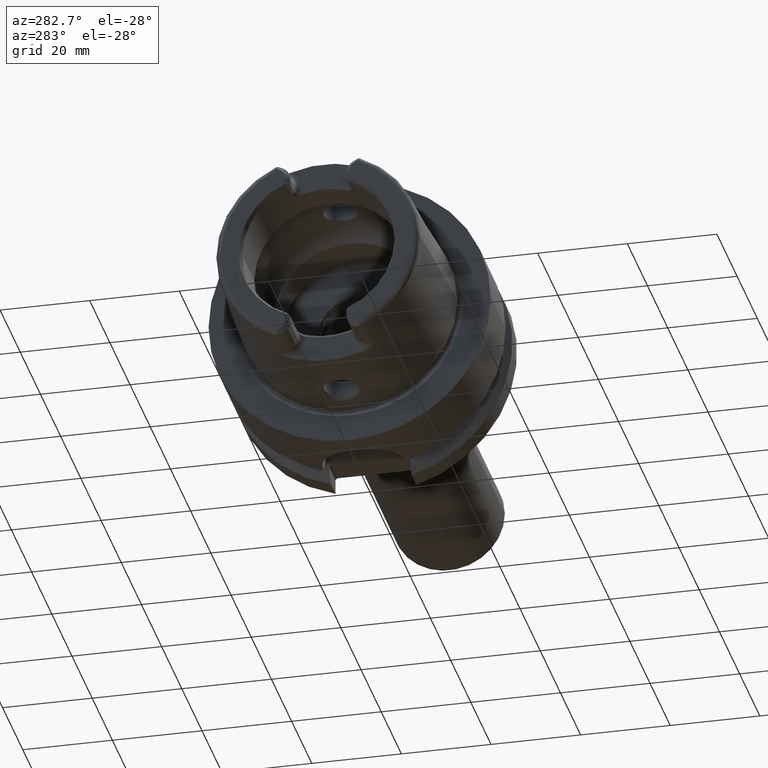
[diagram: clean part render]
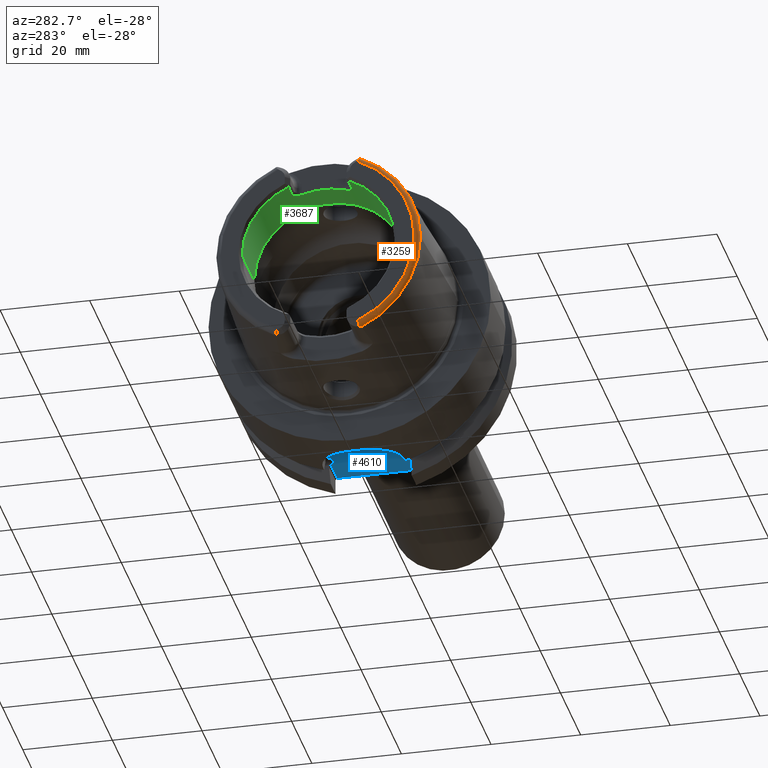
[diagram: same view with three faces highlighted in distinct colors, each labeled with its STEP entity id]
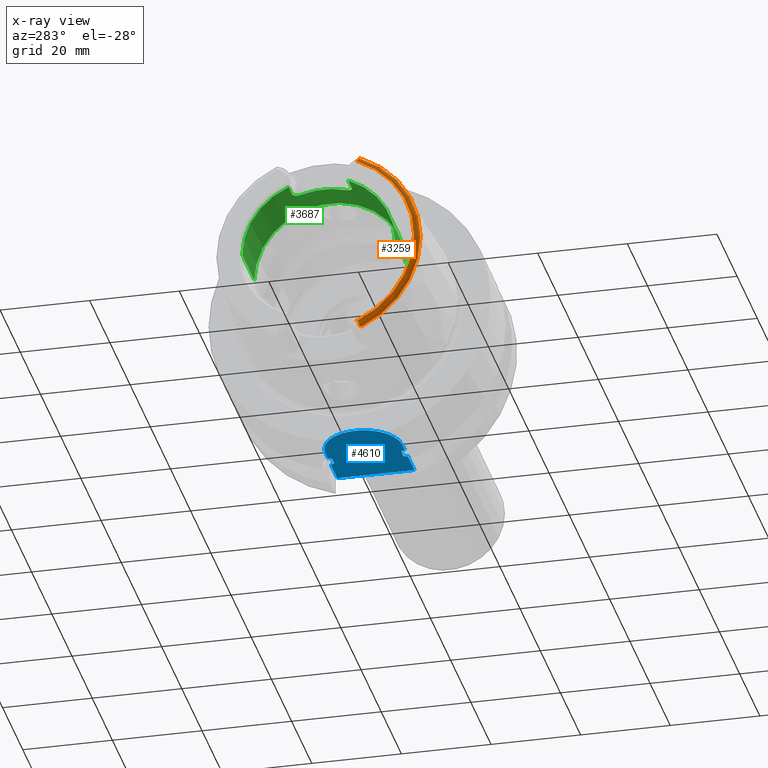
[diagram: x-ray of the same camera — body ghosted, the three highlighted faces saturated]
A machine part, auxiliary view with three faces highlighted in distinct colors.
The next image is the same camera in x-ray (body ghosted, the three faces saturated) — at least one of them is partly hidden behind the body in this view.
Their STEP definitions:

[orange] entity #3259 — the highlighted toroidal blend (fillet) surface has major radius 21.5761 mm and minor (blend) radius 1.2 mm.
#220=CARTESIAN_POINT('',(-3.2E1,-8.752868121732E0,-1.972091419616E1));
#221=CARTESIAN_POINT('',(-3.2E1,-8.806191392107E0,-1.975573003538E1));
#222=CARTESIAN_POINT('',(-3.199307728065E1,-8.906838058357E0,
-1.982971194007E1));
#223=CARTESIAN_POINT('',(-3.195660462370E1,-9.041248816786E0,
-1.996103000182E1));
#224=CARTESIAN_POINT('',(-3.189040233195E1,-9.144202826203E0,
-2.010731482616E1));
#225=CARTESIAN_POINT('',(-3.179646342749E1,-9.206041881340E0,
-2.025988014952E1));
#226=CARTESIAN_POINT('',(-3.168160529070E1,-9.224292971301E0,
-2.040896943202E1));
#227=CARTESIAN_POINT('',(-3.155472601909E1,-9.203436757989E0,
-2.054688136818E1));
#228=CARTESIAN_POINT('',(-3.146778482605E1,-9.169293416595E0,
-2.062842062115E1));
#229=CARTESIAN_POINT('',(-3.142329832300E1,-9.147789680232E0,
-2.066750973939E1));
#231=CARTESIAN_POINT('',(-3.2E1,0.E0,0.E0));
#232=DIRECTION('',(-1.E0,0.E0,0.E0));
#233=DIRECTION('',(0.E0,-4.056746540583E-1,-9.140175463604E-1));
#234=AXIS2_PLACEMENT_3D('',#231,#232,#233);
#236=CARTESIAN_POINT('',(-3.142329832300E1,-9.147789680232E0,2.066750973939E1));
#237=CARTESIAN_POINT('',(-3.146785463680E1,-9.169327161481E0,2.062835928028E1));
#238=CARTESIAN_POINT('',(-3.155487993536E1,-9.203474960428E0,2.054672249220E1));
#239=CARTESIAN_POINT('',(-3.168154941819E1,-9.224273580731E0,2.040902349895E1));
#240=CARTESIAN_POINT('',(-3.179638971845E1,-9.206079697358E0,2.025999286960E1));
#241=CARTESIAN_POINT('',(-3.189041365611E1,-9.144200972137E0,2.010730009138E1));
#242=CARTESIAN_POINT('',(-3.195659880516E1,-9.041253650427E0,1.996104010677E1));
#243=CARTESIAN_POINT('',(-3.199307626724E1,-8.906850532423E0,1.982972129493E1));
#244=CARTESIAN_POINT('',(-3.2E1,-8.806197293584E0,1.975573388857E1));
#245=CARTESIAN_POINT('',(-3.2E1,-8.752868121732E0,1.972091419616E1));
#247=CARTESIAN_POINT('',(-3.132832518959E1,-9.27E0,2.067E1));
#248=CARTESIAN_POINT('',(-3.134450759901E1,-9.250608646179E0,2.067E1));
#249=CARTESIAN_POINT('',(-3.137648814066E1,-9.210816796832E0,2.066962390252E1));
#250=CARTESIAN_POINT('',(-3.140779600340E1,-9.169107457374E0,2.066837887831E1));
#251=CARTESIAN_POINT('',(-3.142329832300E1,-9.147789680232E0,2.066750973939E1));
#253=CARTESIAN_POINT('',(-3.086004306431E1,-9.562027931336E0,2.067E1));
#254=CARTESIAN_POINT('',(-3.089908117982E1,-9.557369764332E0,2.067E1));
#255=CARTESIAN_POINT('',(-3.097780815735E1,-9.539070199208E0,2.067E1));
#256=CARTESIAN_POINT('',(-3.110050491135E1,-9.479694699778E0,2.067E1));
#257=CARTESIAN_POINT('',(-3.121836320761E1,-9.390392333018E0,2.067E1));
#258=CARTESIAN_POINT('',(-3.129230837722E1,-9.313158885277E0,2.067E1));
#259=CARTESIAN_POINT('',(-3.132832518959E1,-9.27E0,2.067E1));
#261=CARTESIAN_POINT('',(-3.086004306431E1,0.E0,0.E0));
#262=DIRECTION('',(1.E0,0.E0,0.E0));
#263=DIRECTION('',(0.E0,-4.198553792210E-1,9.075910205259E-1));
#264=AXIS2_PLACEMENT_3D('',#261,#262,#263);
#266=CARTESIAN_POINT('',(-3.086004306431E1,0.E0,0.E0));
#267=DIRECTION('',(-1.E0,0.E0,0.E0));
#268=DIRECTION('',(0.E0,-4.198553792210E-1,-9.075910205259E-1));
#269=AXIS2_PLACEMENT_3D('',#266,#267,#268);
#271=CARTESIAN_POINT('',(-3.132832518959E1,-9.27E0,-2.067E1));
#272=CARTESIAN_POINT('',(-3.129225458868E1,-9.313223339992E0,-2.067E1));
#273=CARTESIAN_POINT('',(-3.121820569130E1,-9.390519030682E0,-2.067E1));
#274=CARTESIAN_POINT('',(-3.110062643974E1,-9.479612323317E0,-2.067E1));
#275=CARTESIAN_POINT('',(-3.097775607391E1,-9.539101836846E0,-2.067E1));
#276=CARTESIAN_POINT('',(-3.089906305674E1,-9.557371926843E0,-2.067E1));
#277=CARTESIAN_POINT('',(-3.086004306431E1,-9.562027931336E0,-2.067E1));
#279=CARTESIAN_POINT('',(-3.142329832300E1,-9.147789680232E0,
-2.066750973939E1));
#280=CARTESIAN_POINT('',(-3.140773724452E1,-9.169188258734E0,
-2.066838217263E1));
#281=CARTESIAN_POINT('',(-3.137636553203E1,-9.210974971125E0,
-2.066962696388E1));
#282=CARTESIAN_POINT('',(-3.134444355624E1,-9.250685388521E0,-2.067E1));
#283=CARTESIAN_POINT('',(-3.132832518959E1,-9.27E0,-2.067E1));
#2638=CARTESIAN_POINT('',(-3.086004306431E1,-2.277457525750E1,0.E0));
#2639=VERTEX_POINT('',#2638);
#2678=CARTESIAN_POINT('',(-3.086004306431E1,-9.562027931336E0,2.067E1));
#2679=VERTEX_POINT('',#2678);
#2680=VERTEX_POINT('',#259);
#2716=VERTEX_POINT('',#251);
#2725=CARTESIAN_POINT('',(-3.2E1,-8.752868121732E0,1.972091419616E1));
#2726=VERTEX_POINT('',#2725);
#2759=CARTESIAN_POINT('',(-3.086004306431E1,-9.562027931336E0,-2.067E1));
#2760=VERTEX_POINT('',#2759);
#2761=VERTEX_POINT('',#271);
#2822=CARTESIAN_POINT('',(-3.2E1,-8.752868121732E0,-1.972091419616E1));
#2823=VERTEX_POINT('',#2822);
#2824=VERTEX_POINT('',#229);
#3237=CARTESIAN_POINT('',(-3.08E1,0.E0,0.E0));
#3238=DIRECTION('',(1.E0,0.E0,0.E0));
#3239=DIRECTION('',(0.E0,-1.E0,0.E0));
#3240=AXIS2_PLACEMENT_3D('',#3237,#3238,#3239);
#3241=TOROIDAL_SURFACE('',#3240,2.157607835286E1,1.2E0);
#3243=ORIENTED_EDGE('',*,*,#3242,.F.);
#3245=ORIENTED_EDGE('',*,*,#3244,.T.);
#3247=ORIENTED_EDGE('',*,*,#3246,.F.);
#3248=ORIENTED_EDGE('',*,*,#3200,.F.);
#3249=ORIENTED_EDGE('',*,*,#3130,.F.);
#3250=ORIENTED_EDGE('',*,*,#3111,.T.);
#3252=ORIENTED_EDGE('',*,*,#3251,.F.);
#3254=ORIENTED_EDGE('',*,*,#3253,.F.);
#3256=ORIENTED_EDGE('',*,*,#3255,.F.);
#3257=EDGE_LOOP('',(#3243,#3245,#3247,#3248,#3249,#3250,#3252,#3254,#3256));
#3258=FACE_OUTER_BOUND('',#3257,.F.);
#3259=ADVANCED_FACE('',(#3258),#3241,.T.);
#230=B_SPLINE_CURVE_WITH_KNOTS('',3,(#220,#221,#222,#223,#224,#225,#226,#227,
#228,#229),.UNSPECIFIED.,.F.,.F.,(4,1,1,1,1,1,1,4),(0.E0,1.428571428571E-1,
2.857142857143E-1,4.285714285714E-1,5.714285714286E-1,7.142857142857E-1,
8.571428571429E-1,1.E0),.UNSPECIFIED.);
#235=CIRCLE('',#234,2.157607835286E1);
#246=B_SPLINE_CURVE_WITH_KNOTS('',3,(#236,#237,#238,#239,#240,#241,#242,#243,
#244,#245),.UNSPECIFIED.,.F.,.F.,(4,1,1,1,1,1,1,4),(0.E0,1.428571428571E-1,
2.857142857143E-1,4.285714285714E-1,5.714285714286E-1,7.142857142857E-1,
8.571428571429E-1,1.E0),.UNSPECIFIED.);
#252=B_SPLINE_CURVE_WITH_KNOTS('',3,(#247,#248,#249,#250,#251),.UNSPECIFIED.,
.F.,.F.,(4,1,4),(0.E0,5.E-1,1.E0),.UNSPECIFIED.);
#260=B_SPLINE_CURVE_WITH_KNOTS('',3,(#253,#254,#255,#256,#257,#258,#259),
.UNSPECIFIED.,.F.,.F.,(4,1,1,1,4),(0.E0,2.5E-1,5.E-1,7.5E-1,1.E0),
.UNSPECIFIED.);
#265=CIRCLE('',#264,2.277457525750E1);
#270=CIRCLE('',#269,2.277457525750E1);
#278=B_SPLINE_CURVE_WITH_KNOTS('',3,(#271,#272,#273,#274,#275,#276,#277),
.UNSPECIFIED.,.F.,.F.,(4,1,1,1,4),(0.E0,2.5E-1,5.E-1,7.5E-1,1.E0),
.UNSPECIFIED.);
#284=B_SPLINE_CURVE_WITH_KNOTS('',3,(#279,#280,#281,#282,#283),.UNSPECIFIED.,
.F.,.F.,(4,1,4),(0.E0,5.E-1,1.E0),.UNSPECIFIED.);
#3111=EDGE_CURVE('',#2679,#2639,#265,.T.);
#3130=EDGE_CURVE('',#2679,#2680,#260,.T.);
#3200=EDGE_CURVE('',#2680,#2716,#252,.T.);
#3242=EDGE_CURVE('',#2823,#2824,#230,.T.);
#3244=EDGE_CURVE('',#2823,#2726,#235,.T.);
#3246=EDGE_CURVE('',#2716,#2726,#246,.T.);
#3251=EDGE_CURVE('',#2760,#2639,#270,.T.);
#3253=EDGE_CURVE('',#2761,#2760,#278,.T.);
#3255=EDGE_CURVE('',#2824,#2761,#284,.T.);

[blue] entity #4610 — the highlighted planar face has unit normal (0, 0, -1).
#1222=CARTESIAN_POINT('',(1.7125E1,7.7E0,-2.64E1));
#1223=CARTESIAN_POINT('',(1.709612257646E1,7.7E0,-2.64E1));
#1224=CARTESIAN_POINT('',(1.703809054195E1,7.708549788548E0,-2.64E1));
#1225=CARTESIAN_POINT('',(1.694576354836E1,7.752741855764E0,-2.64E1));
#1226=CARTESIAN_POINT('',(1.686145167985E1,7.821144618954E0,-2.64E1));
#1227=CARTESIAN_POINT('',(1.678169591401E1,7.910255407197E0,-2.64E1));
#1228=CARTESIAN_POINT('',(1.670585865658E1,8.018731508895E0,-2.64E1));
#1229=CARTESIAN_POINT('',(1.663386002384E1,8.144595739092E0,-2.64E1));
#1230=CARTESIAN_POINT('',(1.656565613315E1,8.286316729889E0,-2.64E1));
#1231=CARTESIAN_POINT('',(1.650080228847E1,8.443935370899E0,-2.64E1));
#1232=CARTESIAN_POINT('',(1.646027482334E1,8.558057187343E0,-2.64E1));
#1233=CARTESIAN_POINT('',(1.644062313526E1,8.6175E0,-2.64E1));
#1296=CARTESIAN_POINT('',(1.644062313526E1,-8.6175E0,-2.64E1));
#1297=CARTESIAN_POINT('',(1.646078603879E1,-8.556510852770E0,-2.64E1));
#1298=CARTESIAN_POINT('',(1.650227386064E1,-8.439948273349E0,-2.64E1));
#1299=CARTESIAN_POINT('',(1.656805348335E1,-8.280864278287E0,-2.64E1));
#1300=CARTESIAN_POINT('',(1.663684500818E1,-8.138886080904E0,-2.64E1));
#1301=CARTESIAN_POINT('',(1.670898389576E1,-8.013810014671E0,-2.64E1));
#1302=CARTESIAN_POINT('',(1.678453793855E1,-7.906721865662E0,-2.64E1));
#1303=CARTESIAN_POINT('',(1.686362062870E1,-7.819127635624E0,-2.64E1));
#1304=CARTESIAN_POINT('',(1.694730615110E1,-7.751879650101E0,-2.64E1));
#1305=CARTESIAN_POINT('',(1.703817130297E1,-7.708637437381E0,-2.64E1));
#1306=CARTESIAN_POINT('',(1.709608612766E1,-7.7E0,-2.64E1));
#1307=CARTESIAN_POINT('',(1.7125E1,-7.7E0,-2.64E1));
#1341=CARTESIAN_POINT('',(1.955937686474E1,8.6175E0,-2.64E1));
#1347=CARTESIAN_POINT('',(1.955937686474E1,8.6175E0,-2.64E1));
#1348=CARTESIAN_POINT('',(1.953933692943E1,8.556882809475E0,-2.64E1));
#1349=CARTESIAN_POINT('',(1.949803643853E1,8.440751828791E0,-2.64E1));
#1350=CARTESIAN_POINT('',(1.943198239289E1,8.280902876688E0,-2.64E1));
#1351=CARTESIAN_POINT('',(1.936289962713E1,8.138372043109E0,-2.64E1));
#1352=CARTESIAN_POINT('',(1.929044179409E1,8.012872381152E0,-2.64E1));
#1353=CARTESIAN_POINT('',(1.921473346325E1,7.905832703978E0,-2.64E1));
#1354=CARTESIAN_POINT('',(1.913579091836E1,7.818493807110E0,-2.64E1));
#1355=CARTESIAN_POINT('',(1.905155273254E1,7.751296731883E0,-2.64E1));
#1356=CARTESIAN_POINT('',(1.896325315553E1,7.709235333598E0,-2.64E1));
#1357=CARTESIAN_POINT('',(1.890455004185E1,7.7E0,-2.64E1));
#1358=CARTESIAN_POINT('',(1.8875E1,7.7E0,-2.64E1));
#1418=CARTESIAN_POINT('',(1.8875E1,-7.7E0,-2.64E1));
#1419=CARTESIAN_POINT('',(1.890473731311E1,-7.7E0,-2.64E1));
#1420=CARTESIAN_POINT('',(1.896439553552E1,-7.709074097953E0,-2.64E1));
#1421=CARTESIAN_POINT('',(1.905895356645E1,-7.755593365771E0,-2.64E1));
#1422=CARTESIAN_POINT('',(1.914506350406E1,-7.827325160610E0,-2.64E1));
#1423=CARTESIAN_POINT('',(1.922569730521E1,-7.919730067314E0,-2.64E1));
#1424=CARTESIAN_POINT('',(1.930098420168E1,-8.029803274102E0,-2.64E1));
#1425=CARTESIAN_POINT('',(1.937115269578E1,-8.154449512708E0,-2.64E1));
#1426=CARTESIAN_POINT('',(1.943699388158E1,-8.292566470765E0,-2.64E1));
#1427=CARTESIAN_POINT('',(1.949974575456E1,-8.445548604297E0,-2.64E1));
#1428=CARTESIAN_POINT('',(1.953984256144E1,-8.558412255131E0,-2.64E1));
#1429=CARTESIAN_POINT('',(1.955937686474E1,-8.6175E0,-2.64E1));
#1461=DIRECTION('',(1.E0,0.E0,0.E0));
#1462=VECTOR('',#1461,6.440623135263E0);
#1463=CARTESIAN_POINT('',(1.955937686474E1,8.6175E0,-2.64E1));
#1464=LINE('',#1463,#1462);
#1465=DIRECTION('',(-9.999999999999E-1,-2.676307863714E-7,-2.675980536163E-7));
#1466=VECTOR('',#1465,2.473123130251E0);
#1467=CARTESIAN_POINT('',(1.644062313526E1,8.6175E0,-2.64E1));
#1468=LINE('',#1467,#1466);
#1469=CARTESIAN_POINT('',(1.39675E1,-2.131628207280E-14,-2.640000139113E1));
#1470=DIRECTION('',(0.E0,0.E0,1.E0));
#1471=DIRECTION('',(-1.030668622693E-14,1.E0,0.E0));
#1472=AXIS2_PLACEMENT_3D('',#1469,#1470,#1471);
#1474=DIRECTION('',(9.999999999999E-1,-2.676237429886E-7,2.676050896565E-7));
#1475=VECTOR('',#1474,2.473123130989E0);
#1476=CARTESIAN_POINT('',(1.396750000427E1,-8.617499338134E0,
-2.640000066182E1));
#1477=LINE('',#1476,#1475);
#1478=DIRECTION('',(-1.E0,0.E0,0.E0));
#1479=VECTOR('',#1478,6.440623135263E0);
#1480=CARTESIAN_POINT('',(2.6E1,-8.6175E0,-2.64E1));
#1481=LINE('',#1480,#1479);
#1482=DIRECTION('',(1.E0,0.E0,0.E0));
#1483=VECTOR('',#1482,1.75E0);
#1484=CARTESIAN_POINT('',(1.7125E1,-7.7E0,-2.64E1));
#1485=LINE('',#1484,#1483);
#1495=DIRECTION('',(1.E0,0.E0,0.E0));
#1496=VECTOR('',#1495,1.75E0);
#1497=CARTESIAN_POINT('',(1.7125E1,7.7E0,-2.64E1));
#1498=LINE('',#1497,#1496);
#1700=DIRECTION('',(0.E0,-1.E0,0.E0));
#1701=VECTOR('',#1700,1.7235E1);
#1702=CARTESIAN_POINT('',(2.6E1,8.6175E0,-2.64E1));
#1703=LINE('',#1702,#1701);
#1873=CARTESIAN_POINT('',(1.644062313526E1,-8.6175E0,-2.64E1));
#1883=CARTESIAN_POINT('',(1.644062313526E1,8.6175E0,-2.64E1));
#2911=VERTEX_POINT('',#1883);
#2914=VERTEX_POINT('',#1873);
#2916=VERTEX_POINT('',#1341);
#2917=CARTESIAN_POINT('',(2.6E1,8.6175E0,-2.64E1));
#2919=VERTEX_POINT('',#2917);
#2922=CARTESIAN_POINT('',(2.6E1,-8.6175E0,-2.64E1));
#2924=VERTEX_POINT('',#2922);
#2925=CARTESIAN_POINT('',(1.955937686474E1,-8.6175E0,-2.64E1));
#2926=VERTEX_POINT('',#2925);
#2929=CARTESIAN_POINT('',(1.396750000427E1,-8.617499338134E0,
-2.640000066182E1));
#2930=VERTEX_POINT('',#2929);
#2935=CARTESIAN_POINT('',(1.396750000501E1,8.617499338116E0,-2.640000066180E1));
#2936=VERTEX_POINT('',#2935);
#3003=CARTESIAN_POINT('',(1.7125E1,-7.7E0,-2.64E1));
#3004=CARTESIAN_POINT('',(1.8875E1,-7.7E0,-2.64E1));
#3005=VERTEX_POINT('',#3003);
#3006=VERTEX_POINT('',#3004);
#3007=CARTESIAN_POINT('',(1.7125E1,7.7E0,-2.64E1));
#3008=CARTESIAN_POINT('',(1.8875E1,7.7E0,-2.64E1));
#3009=VERTEX_POINT('',#3007);
#3010=VERTEX_POINT('',#3008);
#4584=CARTESIAN_POINT('',(0.E0,0.E0,-2.64E1));
#4585=DIRECTION('',(0.E0,0.E0,-1.E0));
#4586=DIRECTION('',(1.E0,0.E0,0.E0));
#4587=AXIS2_PLACEMENT_3D('',#4584,#4585,#4586);
#4588=PLANE('',#4587);
#4589=ORIENTED_EDGE('',*,*,#4526,.F.);
#4590=ORIENTED_EDGE('',*,*,#4539,.T.);
#4592=ORIENTED_EDGE('',*,*,#4591,.F.);
#4593=ORIENTED_EDGE('',*,*,#4438,.T.);
#4595=ORIENTED_EDGE('',*,*,#4594,.T.);
#4597=ORIENTED_EDGE('',*,*,#4596,.T.);
#4599=ORIENTED_EDGE('',*,*,#4598,.T.);
#4600=ORIENTED_EDGE('',*,*,#4469,.T.);
#4602=ORIENTED_EDGE('',*,*,#4601,.T.);
#4603=ORIENTED_EDGE('',*,*,#4571,.T.);
#4605=ORIENTED_EDGE('',*,*,#4604,.F.);
#4607=ORIENTED_EDGE('',*,*,#4606,.F.);
#4608=EDGE_LOOP('',(#4589,#4590,#4592,#4593,#4595,#4597,#4599,#4600,#4602,#4603,
#4605,#4607));
#4609=FACE_OUTER_BOUND('',#4608,.F.);
#4610=ADVANCED_FACE('',(#4609),#4588,.T.);
#1234=B_SPLINE_CURVE_WITH_KNOTS('',3,(#1222,#1223,#1224,#1225,#1226,#1227,#1228,
#1229,#1230,#1231,#1232,#1233),.UNSPECIFIED.,.F.,.F.,(4,1,1,1,1,1,1,1,1,4),
(0.E0,1.111111111111E-1,2.222222222222E-1,3.333333333333E-1,4.444444444444E-1,
5.555555555556E-1,6.666666666667E-1,7.777777777778E-1,8.888888888889E-1,1.E0),
.UNSPECIFIED.);
#1308=B_SPLINE_CURVE_WITH_KNOTS('',3,(#1296,#1297,#1298,#1299,#1300,#1301,#1302,
#1303,#1304,#1305,#1306,#1307),.UNSPECIFIED.,.F.,.F.,(4,1,1,1,1,1,1,1,1,4),
(0.E0,1.111111111111E-1,2.222222222222E-1,3.333333333333E-1,4.444444444444E-1,
5.555555555556E-1,6.666666666667E-1,7.777777777778E-1,8.888888888889E-1,1.E0),
.UNSPECIFIED.);
#1359=B_SPLINE_CURVE_WITH_KNOTS('',3,(#1347,#1348,#1349,#1350,#1351,#1352,#1353,
#1354,#1355,#1356,#1357,#1358),.UNSPECIFIED.,.F.,.F.,(4,1,1,1,1,1,1,1,1,4),
(0.E0,1.111111111111E-1,2.222222222222E-1,3.333333333333E-1,4.444444444444E-1,
5.555555555556E-1,6.666666666667E-1,7.777777777778E-1,8.888888888889E-1,1.E0),
.UNSPECIFIED.);
#1430=B_SPLINE_CURVE_WITH_KNOTS('',3,(#1418,#1419,#1420,#1421,#1422,#1423,#1424,
#1425,#1426,#1427,#1428,#1429),.UNSPECIFIED.,.F.,.F.,(4,1,1,1,1,1,1,1,1,4),
(0.E0,1.111111111111E-1,2.222222222222E-1,3.333333333333E-1,4.444444444444E-1,
5.555555555556E-1,6.666666666667E-1,7.777777777778E-1,8.888888888889E-1,1.E0),
.UNSPECIFIED.);
#1473=CIRCLE('',#1472,8.617497420067E0);
#4438=EDGE_CURVE('',#3009,#2911,#1234,.T.);
#4469=EDGE_CURVE('',#2914,#3005,#1308,.T.);
#4526=EDGE_CURVE('',#2916,#2919,#1464,.T.);
#4539=EDGE_CURVE('',#2916,#3010,#1359,.T.);
#4571=EDGE_CURVE('',#3006,#2926,#1430,.T.);
#4591=EDGE_CURVE('',#3009,#3010,#1498,.T.);
#4594=EDGE_CURVE('',#2911,#2936,#1468,.T.);
#4596=EDGE_CURVE('',#2936,#2930,#1473,.T.);
#4598=EDGE_CURVE('',#2930,#2914,#1477,.T.);
#4601=EDGE_CURVE('',#3005,#3006,#1485,.T.);
#4604=EDGE_CURVE('',#2924,#2926,#1481,.T.);
#4606=EDGE_CURVE('',#2919,#2924,#1703,.T.);

[green] entity #3687 — the highlighted cylindrical surface (partial cylindrical patch) has radius 17 mm, axis along (1, 0, 0).
#362=CARTESIAN_POINT('',(-3.1E1,0.E0,0.E0));
#363=DIRECTION('',(1.E0,0.E0,0.E0));
#364=DIRECTION('',(0.E0,1.E0,0.E0));
#365=AXIS2_PLACEMENT_3D('',#362,#363,#364);
#394=CARTESIAN_POINT('',(-3.1E1,0.E0,0.E0));
#395=DIRECTION('',(1.E0,0.E0,0.E0));
#396=DIRECTION('',(0.E0,-3.910839598454E-1,9.203550056102E-1));
#397=AXIS2_PLACEMENT_3D('',#394,#395,#396);
#559=DIRECTION('',(1.E0,0.E0,0.E0));
#560=VECTOR('',#559,3.5E0);
#561=CARTESIAN_POINT('',(-3.1E1,6.648427317371E0,1.564603509537E1));
#562=LINE('',#561,#560);
#563=CARTESIAN_POINT('',(-2.571132486541E1,4.77E0,1.631708000838E1));
#564=CARTESIAN_POINT('',(-2.570911463045E1,4.851899929325E0,1.629313806150E1));
#565=CARTESIAN_POINT('',(-2.571539985496E1,5.014300274441E0,1.624433189365E1));
#566=CARTESIAN_POINT('',(-2.575723226820E1,5.255574737127E0,1.616786516493E1));
#567=CARTESIAN_POINT('',(-2.583019759937E1,5.488813832187E0,1.609012650164E1));
#568=CARTESIAN_POINT('',(-2.593222755914E1,5.709311810621E0,1.601314455534E1));
#569=CARTESIAN_POINT('',(-2.606208908479E1,5.913640570765E0,1.593873381343E1));
#570=CARTESIAN_POINT('',(-2.621579663552E1,6.097621457296E0,1.586916363348E1));
#571=CARTESIAN_POINT('',(-2.639004084082E1,6.257927374534E0,1.580654307494E1));
#572=CARTESIAN_POINT('',(-2.658287946713E1,6.394281114327E0,1.575179653388E1));
#573=CARTESIAN_POINT('',(-2.679414325254E1,6.504885265694E0,1.570637036291E1));
#574=CARTESIAN_POINT('',(-2.702072491693E1,6.586740689310E0,1.567215753589E1));
#575=CARTESIAN_POINT('',(-2.725841410654E1,6.637201205541E0,1.565081274977E1));
#576=CARTESIAN_POINT('',(-2.741884128981E1,6.648427317371E0,1.564603509537E1));
#577=CARTESIAN_POINT('',(-2.75E1,6.648427317371E0,1.564603509537E1));
#579=CARTESIAN_POINT('',(-2.571132486541E1,-4.77E0,1.631708000838E1));
#580=CARTESIAN_POINT('',(-2.571132486541E1,-4.151241293882E0,1.649796280277E1));
#581=CARTESIAN_POINT('',(-2.571132889067E1,-2.893125957956E0,1.678926713017E1));
#582=CARTESIAN_POINT('',(-2.571132738120E1,-9.685489423330E-1,
1.700915920873E1));
#583=CARTESIAN_POINT('',(-2.571132738120E1,9.685489423332E-1,1.700915920873E1));
#584=CARTESIAN_POINT('',(-2.571132889067E1,2.893125957955E0,1.678926713017E1));
#585=CARTESIAN_POINT('',(-2.571132486541E1,4.151241293884E0,1.649796280277E1));
#586=CARTESIAN_POINT('',(-2.571132486541E1,4.77E0,1.631708000838E1));
#588=CARTESIAN_POINT('',(-2.75E1,-6.648427317371E0,1.564603509537E1));
#589=CARTESIAN_POINT('',(-2.741886739757E1,-6.648427317371E0,1.564603509537E1));
#590=CARTESIAN_POINT('',(-2.725846026145E1,-6.637216591931E0,1.565080624648E1));
#591=CARTESIAN_POINT('',(-2.702047669465E1,-6.586680175792E0,1.567218311946E1));
#592=CARTESIAN_POINT('',(-2.679396033382E1,-6.504789416100E0,1.570640995358E1));
#593=CARTESIAN_POINT('',(-2.658322850975E1,-6.394447887183E0,1.575172726773E1));
#594=CARTESIAN_POINT('',(-2.639118887217E1,-6.258799446744E0,1.580619508840E1));
#595=CARTESIAN_POINT('',(-2.621738949273E1,-6.099242016698E0,1.586853752436E1));
#596=CARTESIAN_POINT('',(-2.606384631874E1,-5.916012648986E0,1.593785105703E1));
#597=CARTESIAN_POINT('',(-2.593366664869E1,-5.711955003317E0,1.601220141386E1));
#598=CARTESIAN_POINT('',(-2.583107108488E1,-5.491206341112E0,1.608931480424E1));
#599=CARTESIAN_POINT('',(-2.575746962839E1,-5.256749499660E0,1.616748882623E1));
#600=CARTESIAN_POINT('',(-2.571543732099E1,-5.014873021211E0,1.624415783103E1));
#601=CARTESIAN_POINT('',(-2.570911008721E1,-4.852068278437E0,1.629308884771E1));
#602=CARTESIAN_POINT('',(-2.571132486541E1,-4.77E0,1.631708000838E1));
#604=DIRECTION('',(1.E0,0.E0,0.E0));
#605=VECTOR('',#604,3.5E0);
#606=CARTESIAN_POINT('',(-3.1E1,-6.648427317371E0,1.564603509537E1));
#607=LINE('',#606,#605);
#608=CARTESIAN_POINT('',(-1.899602540378E1,0.E0,0.E0));
#609=DIRECTION('',(1.E0,0.E0,0.E0));
#610=DIRECTION('',(0.E0,1.E0,0.E0));
#611=AXIS2_PLACEMENT_3D('',#608,#609,#610);
#666=DIRECTION('',(-1.E0,0.E0,0.E0));
#667=VECTOR('',#666,1.200397459622E1);
#668=CARTESIAN_POINT('',(-1.899602540378E1,1.7E1,0.E0));
#669=LINE('',#668,#667);
#675=DIRECTION('',(-1.E0,0.E0,0.E0));
#676=VECTOR('',#675,1.200397459622E1);
#677=CARTESIAN_POINT('',(-1.899602540378E1,-1.7E1,0.E0));
#678=LINE('',#677,#676);
#2660=CARTESIAN_POINT('',(-1.899602540378E1,1.7E1,0.E0));
#2661=VERTEX_POINT('',#2660);
#2662=CARTESIAN_POINT('',(-3.1E1,1.7E1,0.E0));
#2663=VERTEX_POINT('',#2662);
#2672=CARTESIAN_POINT('',(-1.899602540378E1,-1.7E1,0.E0));
#2673=VERTEX_POINT('',#2672);
#2674=CARTESIAN_POINT('',(-3.1E1,-1.7E1,0.E0));
#2675=VERTEX_POINT('',#2674);
#2741=CARTESIAN_POINT('',(-2.75E1,6.648427317371E0,1.564603509537E1));
#2742=VERTEX_POINT('',#2741);
#2743=CARTESIAN_POINT('',(-2.571132486541E1,4.77E0,1.631708000838E1));
#2744=VERTEX_POINT('',#2743);
#2745=CARTESIAN_POINT('',(-2.75E1,-6.648427317371E0,1.564603509537E1));
#2746=VERTEX_POINT('',#2745);
#2747=CARTESIAN_POINT('',(-2.571132486541E1,-4.77E0,1.631708000838E1));
#2748=VERTEX_POINT('',#2747);
#2753=CARTESIAN_POINT('',(-3.1E1,6.648427317371E0,1.564603509537E1));
#2754=VERTEX_POINT('',#2753);
#2755=CARTESIAN_POINT('',(-3.1E1,-6.648427317371E0,1.564603509537E1));
#2756=VERTEX_POINT('',#2755);
#3666=CARTESIAN_POINT('',(-3.41E1,0.E0,0.E0));
#3667=DIRECTION('',(1.E0,0.E0,0.E0));
#3668=DIRECTION('',(0.E0,-1.E0,0.E0));
#3669=AXIS2_PLACEMENT_3D('',#3666,#3667,#3668);
#3670=CYLINDRICAL_SURFACE('',#3669,1.7E1);
#3671=ORIENTED_EDGE('',*,*,#3403,.T.);
#3673=ORIENTED_EDGE('',*,*,#3672,.F.);
#3674=ORIENTED_EDGE('',*,*,#3551,.F.);
#3675=ORIENTED_EDGE('',*,*,#3606,.F.);
#3676=ORIENTED_EDGE('',*,*,#3621,.F.);
#3677=ORIENTED_EDGE('',*,*,#3368,.T.);
#3679=ORIENTED_EDGE('',*,*,#3678,.F.);
#3681=ORIENTED_EDGE('',*,*,#3680,.F.);
#3683=ORIENTED_EDGE('',*,*,#3682,.T.);
#3684=ORIENTED_EDGE('',*,*,#3348,.T.);
#3685=EDGE_LOOP('',(#3671,#3673,#3674,#3675,#3676,#3677,#3679,#3681,#3683,
#3684));
#3686=FACE_OUTER_BOUND('',#3685,.F.);
#3687=ADVANCED_FACE('',(#3686),#3670,.F.);
#366=CIRCLE('',#365,1.7E1);
#398=CIRCLE('',#397,1.7E1);
#578=B_SPLINE_CURVE_WITH_KNOTS('',3,(#563,#564,#565,#566,#567,#568,#569,#570,
#571,#572,#573,#574,#575,#576,#577),.UNSPECIFIED.,.F.,.F.,(4,1,1,1,1,1,1,1,1,1,
1,1,4),(0.E0,8.333333333333E-2,1.666666666667E-1,2.5E-1,3.333333333333E-1,
4.166666666667E-1,5.E-1,5.833333333333E-1,6.666666666667E-1,7.5E-1,
8.333333333333E-1,9.166666666667E-1,1.E0),.UNSPECIFIED.);
#587=B_SPLINE_CURVE_WITH_KNOTS('',3,(#579,#580,#581,#582,#583,#584,#585,#586),
.UNSPECIFIED.,.F.,.F.,(4,1,1,1,1,4),(0.E0,2.E-1,4.E-1,6.E-1,8.E-1,1.E0),
.UNSPECIFIED.);
#603=B_SPLINE_CURVE_WITH_KNOTS('',3,(#588,#589,#590,#591,#592,#593,#594,#595,
#596,#597,#598,#599,#600,#601,#602),.UNSPECIFIED.,.F.,.F.,(4,1,1,1,1,1,1,1,1,1,
1,1,4),(0.E0,8.333333333333E-2,1.666666666667E-1,2.5E-1,3.333333333333E-1,
4.166666666667E-1,5.E-1,5.833333333333E-1,6.666666666667E-1,7.5E-1,
8.333333333333E-1,9.166666666667E-1,1.E0),.UNSPECIFIED.);
#612=CIRCLE('',#611,1.7E1);
#3348=EDGE_CURVE('',#2663,#2754,#366,.T.);
#3368=EDGE_CURVE('',#2756,#2675,#398,.T.);
#3403=EDGE_CURVE('',#2754,#2742,#562,.T.);
#3551=EDGE_CURVE('',#2748,#2744,#587,.T.);
#3606=EDGE_CURVE('',#2746,#2748,#603,.T.);
#3621=EDGE_CURVE('',#2756,#2746,#607,.T.);
#3672=EDGE_CURVE('',#2744,#2742,#578,.T.);
#3678=EDGE_CURVE('',#2673,#2675,#678,.T.);
#3680=EDGE_CURVE('',#2661,#2673,#612,.T.);
#3682=EDGE_CURVE('',#2661,#2663,#669,.T.);